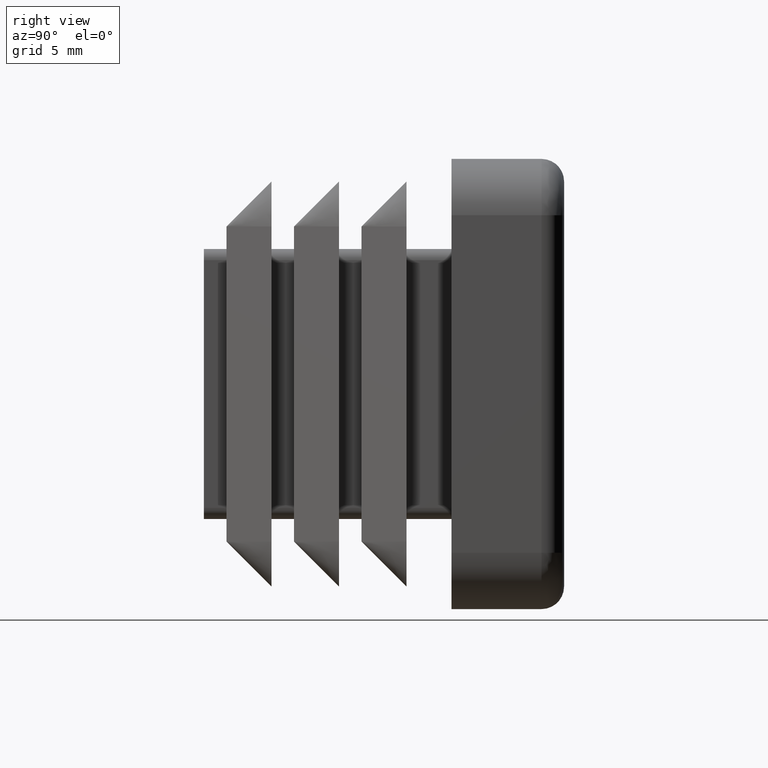
[diagram: clean part render]
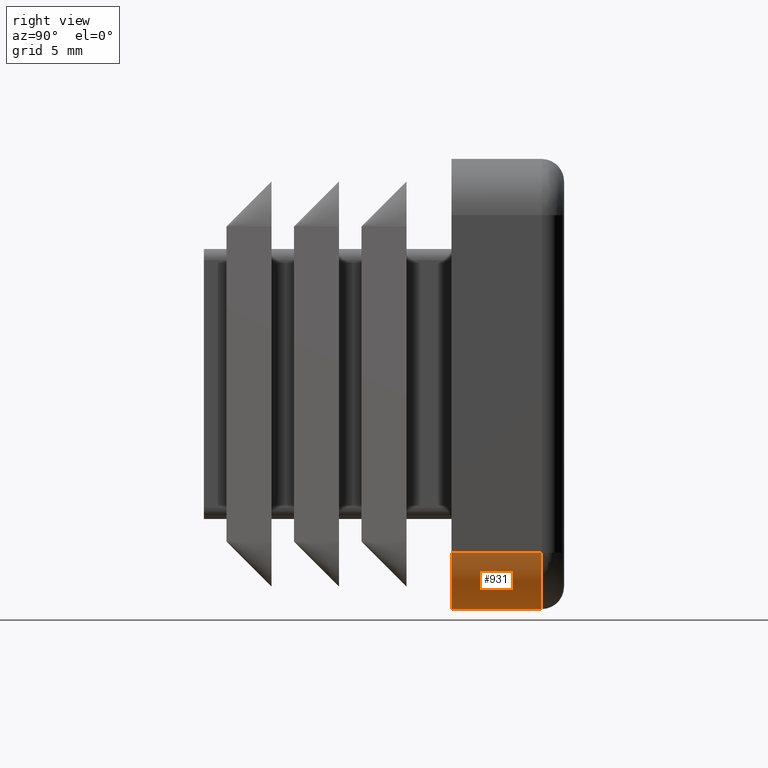
[diagram: same view with one face highlighted and labeled with its STEP entity id]
A machine part, right view. The second image highlights one B-rep face of the part: STEP entity #931.
In plain terms, the highlighted cylindrical surface (partial cylindrical patch) has radius 2.5 mm, axis along (0, -1, 0).
Its self-contained STEP definition (entity closure, byte-faithful):
#873=CARTESIAN_POINT('',(10.000000000000007,4.0,-7.500000000000003));
#874=VERTEX_POINT('',#873);
#875=CARTESIAN_POINT('',(10.000000000000007,0.0,-7.500000000000003));
#876=VERTEX_POINT('',#875);
#877=CARTESIAN_POINT('',(10.000000000000007,4.0,-7.500000000000003));
#878=DIRECTION('',(0.0,-1.0,0.0));
#879=VECTOR('',#878,4.0);
#880=LINE('',#877,#879);
#881=EDGE_CURVE('',#874,#876,#880,.T.);
#899=CARTESIAN_POINT('',(7.500000000000004,4.000000010000000,-7.500000000000003));
#900=DIRECTION('',(0.0,-1.0,0.0));
#901=DIRECTION('',(-0.707106781186548,0.0,0.707106781186547));
#902=AXIS2_PLACEMENT_3D('',#899,#900,#901);
#903=CYLINDRICAL_SURFACE('',#902,2.500000000000004);
#904=CARTESIAN_POINT('',(7.500000000000004,4.0,-10.000000000000004));
#905=VERTEX_POINT('',#904);
#906=CARTESIAN_POINT('',(7.500000000000004,0.0,-10.000000000000004));
#907=VERTEX_POINT('',#906);
#908=CARTESIAN_POINT('',(7.500000000000004,4.0,-10.000000000000004));
#909=DIRECTION('',(0.0,-1.0,0.0));
#910=VECTOR('',#909,4.0);
#911=LINE('',#908,#910);
#912=EDGE_CURVE('',#905,#907,#911,.T.);
#913=ORIENTED_EDGE('',*,*,#912,.F.);
#914=CARTESIAN_POINT('',(7.500000000000004,4.0,-7.500000000000003));
#915=DIRECTION('',(0.0,-1.0,0.0));
#916=DIRECTION('',(0.0,0.0,1.0));
#917=AXIS2_PLACEMENT_3D('',#914,#915,#916);
#918=CIRCLE('',#917,2.500000000000003);
#919=EDGE_CURVE('',#905,#874,#918,.T.);
#920=ORIENTED_EDGE('',*,*,#919,.T.);
#921=ORIENTED_EDGE('',*,*,#881,.T.);
#922=CARTESIAN_POINT('',(7.500000000000004,0.0,-7.500000000000003));
#923=DIRECTION('',(0.0,1.0,0.0));
#924=DIRECTION('',(0.0,0.0,1.0));
#925=AXIS2_PLACEMENT_3D('',#922,#923,#924);
#926=CIRCLE('',#925,2.500000000000003);
#927=EDGE_CURVE('',#876,#907,#926,.T.);
#928=ORIENTED_EDGE('',*,*,#927,.T.);
#929=EDGE_LOOP('',(#913,#920,#921,#928));
#930=FACE_OUTER_BOUND('',#929,.T.);
#931=ADVANCED_FACE('',(#930),#903,.T.);